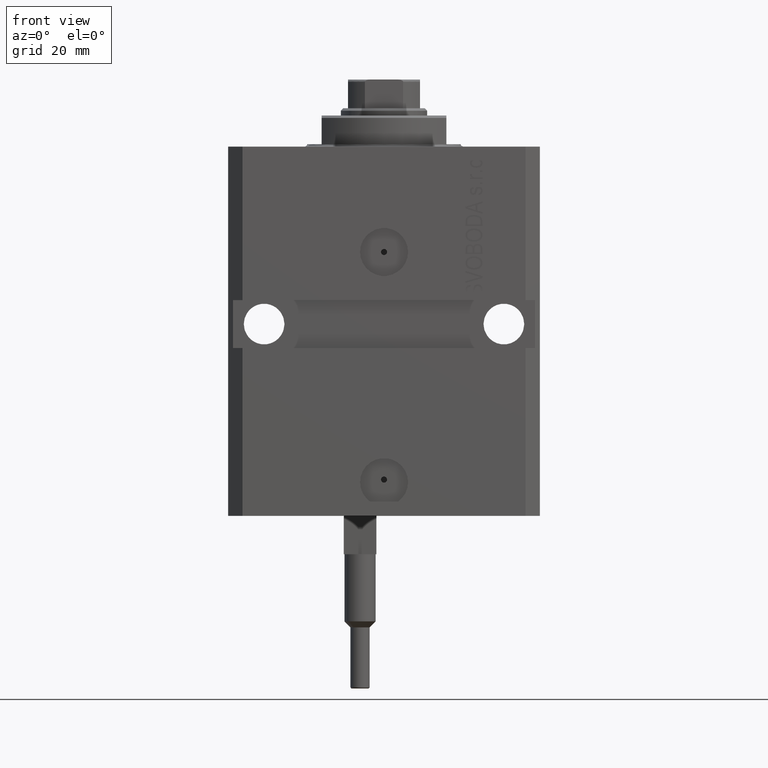
[diagram: clean part render]
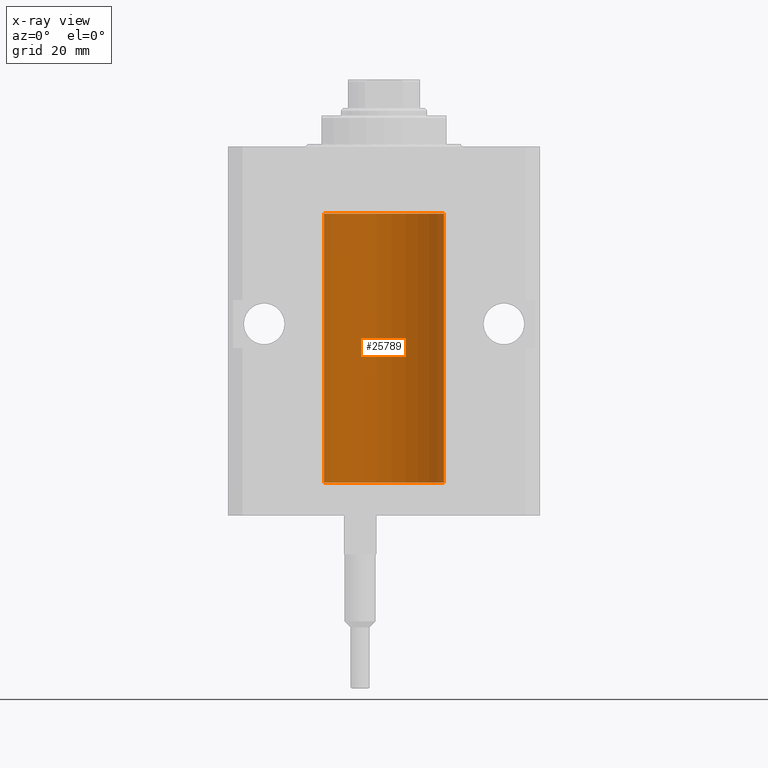
[diagram: x-ray — body ghosted, one internal face saturated and labeled with its STEP entity id]
A machine part, front view, then the same camera in x-ray: the body is ghosted and one INTERNAL B-rep face — a face not visible from any outside direction — is saturated and labeled: STEP entity #25789.
In plain terms, the highlighted cylindrical surface (partial cylindrical patch) has radius 12.5 mm, axis along (0, 0, 1).
Its self-contained STEP definition (entity closure, byte-faithful):
#194 = ORIENTED_EDGE ( 'NONE', *, *, #30402, .T. ) ;
#2446 = VERTEX_POINT ( 'NONE', #31337 ) ;
#3288 = CARTESIAN_POINT ( 'NONE',  ( -12.50000000000000000, -1.053276923642966949E-14, -64.37500000000000000 ) ) ;
#3767 = CARTESIAN_POINT ( 'NONE',  ( -12.49011732893843885, 0.5003763274120245352, -65.38348111289289477 ) ) ;
#4583 = CARTESIAN_POINT ( 'NONE',  ( -12.50000000000000000, -2.089494013101375120E-17, -21.37499999999999645 ) ) ;
#4644 = CARTESIAN_POINT ( 'NONE',  ( -12.48436813453758454, 0.6249418250771192618, -21.83668996798922635 ) ) ;
#6892 = VERTEX_POINT ( 'NONE', #38713 ) ;
#7084 = DIRECTION ( 'NONE',  ( 0.000000000000000000, 0.000000000000000000, 1.000000000000000000 ) ) ;
#7404 = CARTESIAN_POINT ( 'NONE',  ( -12.49915784441386890, 0.1636601911727943726, -64.39126818989430490 ) ) ;
#7504 = ORIENTED_EDGE ( 'NONE', *, *, #30743, .T. ) ;
#8134 = CARTESIAN_POINT ( 'NONE',  ( 12.50000000000000000, 0.000000000000000000, -70.09999999999999432 ) ) ;
#8277 = CARTESIAN_POINT ( 'NONE',  ( -12.49625855304193678, 0.3150454781038042329, -21.45402800297484802 ) ) ;
#8519 = CARTESIAN_POINT ( 'NONE',  ( -12.49915784441386890, 0.1636601911727947889, -21.39126818989430490 ) ) ;
#8897 = ORIENTED_EDGE ( 'NONE', *, *, #34902, .T. ) ;
#9186 = CARTESIAN_POINT ( 'NONE',  ( 12.50000000000000000, 0.000000000000000000, -13.99999999999999822 ) ) ;
#9513 = VERTEX_POINT ( 'NONE', #38198 ) ;
#10558 = ORIENTED_EDGE ( 'NONE', *, *, #46093, .F. ) ;
#11419 = CARTESIAN_POINT ( 'NONE',  ( -12.50000000000000000, 0.08260426088729219685, -21.37500000000000000 ) ) ;
#12033 = EDGE_CURVE ( 'NONE', #24742, #39116, #12627, .T. ) ;
#12080 = CYLINDRICAL_SURFACE ( 'NONE', #29189, 12.50000000000000000 ) ;
#12627 = LINE ( 'NONE', #45840, #18391 ) ;
#12740 = DIRECTION ( 'NONE',  ( -0.000000000000000000, -0.000000000000000000, 1.000000000000000000 ) ) ;
#13015 = ORIENTED_EDGE ( 'NONE', *, *, #29585, .T. ) ;
#13082 = VERTEX_POINT ( 'NONE', #4583 ) ;
#13911 = ORIENTED_EDGE ( 'NONE', *, *, #45574, .F. ) ;
#14837 = CARTESIAN_POINT ( 'NONE',  ( 0.000000000000000000, 0.000000000000000000, -70.09999999999999432 ) ) ;
#15159 = CARTESIAN_POINT ( 'NONE',  ( -12.48436813453758809, 0.6249418250771181516, -64.83668996798922990 ) ) ;
#16651 = CARTESIAN_POINT ( 'NONE',  ( -12.50000000000000000, -1.053276923642966949E-14, -64.37500000000000000 ) ) ;
#17117 = DIRECTION ( 'NONE',  ( 0.000000000000000000, 0.000000000000000000, 1.000000000000000000 ) ) ;
#17997 = DIRECTION ( 'NONE',  ( 1.000000000000000000, 0.000000000000000000, 0.000000000000000000 ) ) ;
#18181 = VERTEX_POINT ( 'NONE', #9186 ) ;
#18391 = VECTOR ( 'NONE', #20373, 1000.000000000000000 ) ;
#18559 = CARTESIAN_POINT ( 'NONE',  ( -12.49999999999999822, 0.1631761135151225950, -65.62499999999985789 ) ) ;
#19379 = LINE ( 'NONE', #44580, #30502 ) ;
#19424 = CARTESIAN_POINT ( 'NONE',  ( -12.48436376893640443, 0.6250290278979917513, -22.08132082824473486 ) ) ;
#20284 = ORIENTED_EDGE ( 'NONE', *, *, #12033, .F. ) ;
#20373 = DIRECTION ( 'NONE',  ( -0.000000000000000000, -0.000000000000000000, 1.000000000000000000 ) ) ;
#20952 = CIRCLE ( 'NONE', #28705, 12.50000000000000000 ) ;
#21114 = EDGE_LOOP ( 'NONE', ( #10558, #31869, #194, #8897, #13911, #7504, #20284, #13015 ) ) ;
#21710 = CARTESIAN_POINT ( 'NONE',  ( -12.49999999999999645, 0.08260426088728485550, -64.37499999999998579 ) ) ;
#21742 = CIRCLE ( 'NONE', #46547, 12.50000000000000000 ) ;
#22180 = CARTESIAN_POINT ( 'NONE',  ( -12.48436376893640265, 0.6250290278979918623, -65.08132082824472775 ) ) ;
#23534 = CARTESIAN_POINT ( 'NONE',  ( -12.49999999999999289, 0.1631761135151241215, -22.62499999999984013 ) ) ;
#24365 = DIRECTION ( 'NONE',  ( 1.000000000000000000, 0.000000000000000000, 0.000000000000000000 ) ) ;
#24742 = VERTEX_POINT ( 'NONE', #16651 ) ;
#25103 = CARTESIAN_POINT ( 'NONE',  ( -12.48810268015257741, 0.5573155909661293705, -64.67347410093867666 ) ) ;
#25581 = CARTESIAN_POINT ( 'NONE',  ( -12.49422197749724361, 0.3843754434364307082, -64.50047099568097053 ) ) ;
#25789 = ADVANCED_FACE ( 'NONE', ( #36807 ), #12080, .F. ) ;
#26206 = CARTESIAN_POINT ( 'NONE',  ( -12.49422197749724006, 0.3843754434364375916, -21.50047099568095277 ) ) ;
#28705 = AXIS2_PLACEMENT_3D ( 'NONE', #14837, #7084, #17997 ) ;
#29102 = CARTESIAN_POINT ( 'NONE',  ( -12.50000000000017941, 3.883381646606358354E-13, -22.62500000000358824 ) ) ;
#29189 = AXIS2_PLACEMENT_3D ( 'NONE', #40444, #47983, #29549 ) ;
#29549 = DIRECTION ( 'NONE',  ( 1.000000000000000000, 0.000000000000000000, 0.000000000000000000 ) ) ;
#29585 = EDGE_CURVE ( 'NONE', #24742, #6892, #44669, .T. ) ;
#29944 = CARTESIAN_POINT ( 'NONE',  ( -12.49631005746706514, 0.3253680783018499389, -65.55856740465391397 ) ) ;
#30092 = CARTESIAN_POINT ( 'NONE',  ( -12.49011732893843529, 0.5003763274120274218, -22.38348111289287701 ) ) ;
#30402 = EDGE_CURVE ( 'NONE', #47539, #18181, #44975, .T. ) ;
#30502 = VECTOR ( 'NONE', #48002, 1000.000000000000000 ) ;
#30743 = EDGE_CURVE ( 'NONE', #13082, #39116, #46929, .T. ) ;
#30822 = CARTESIAN_POINT ( 'NONE',  ( -12.50000000000000000, -2.089494013101375120E-17, -21.37499999999999645 ) ) ;
#30912 = VECTOR ( 'NONE', #12740, 1000.000000000000000 ) ;
#31337 = CARTESIAN_POINT ( 'NONE',  ( -12.50000000000000000, 1.530808498934191521E-15, -13.99999999999999822 ) ) ;
#31869 = ORIENTED_EDGE ( 'NONE', *, *, #37630, .F. ) ;
#32036 = CARTESIAN_POINT ( 'NONE',  ( -12.50000000000000000, 1.530808498934191521E-15, -70.09999999999999432 ) ) ;
#34211 = CARTESIAN_POINT ( 'NONE',  ( -12.48520330846397819, 0.6088355886774127201, -22.16325431852561323 ) ) ;
#34452 = CARTESIAN_POINT ( 'NONE',  ( -12.48809959379011403, 0.5462151254764975317, -22.31461370481611795 ) ) ;
#34902 = EDGE_CURVE ( 'NONE', #18181, #2446, #21742, .T. ) ;
#35289 = CARTESIAN_POINT ( 'NONE',  ( 0.000000000000000000, 0.000000000000000000, -13.99999999999999822 ) ) ;
#35426 = DIRECTION ( 'NONE',  ( -0.000000000000000000, -0.000000000000000000, 1.000000000000000000 ) ) ;
#36494 = CARTESIAN_POINT ( 'NONE',  ( -12.49625855304193500, 0.3150454781038046770, -64.45402800297485157 ) ) ;
#36807 = FACE_OUTER_BOUND ( 'NONE', #21114, .T. ) ;
#36968 = CARTESIAN_POINT ( 'NONE',  ( -12.48809959379011580, 0.5462151254764966435, -65.31461370481613926 ) ) ;
#37630 = EDGE_CURVE ( 'NONE', #47539, #9513, #20952, .T. ) ;
#37832 = CARTESIAN_POINT ( 'NONE',  ( -12.48810268015257563, 0.5573155909661349217, -21.67347410093867666 ) ) ;
#38074 = CARTESIAN_POINT ( 'NONE',  ( -12.50000000000017941, 3.883381646606358354E-13, -22.62500000000358824 ) ) ;
#38198 = CARTESIAN_POINT ( 'NONE',  ( -12.50000000000000000, 1.530808498934191521E-15, -70.09999999999999432 ) ) ;
#38713 = CARTESIAN_POINT ( 'NONE',  ( -12.50000000000017941, 3.883381774819353300E-13, -65.62500000000359535 ) ) ;
#39116 = VERTEX_POINT ( 'NONE', #29102 ) ;
#39797 = VECTOR ( 'NONE', #35426, 1000.000000000000000 ) ;
#39898 = CARTESIAN_POINT ( 'NONE',  ( -12.50000000000017941, 3.883381774819353300E-13, -65.62500000000359535 ) ) ;
#40369 = CARTESIAN_POINT ( 'NONE',  ( -12.48520330846398174, 0.6088355886774118320, -65.16325431852561678 ) ) ;
#40444 = CARTESIAN_POINT ( 'NONE',  ( 0.000000000000000000, 0.000000000000000000, -70.09999999999999432 ) ) ;
#40997 = CARTESIAN_POINT ( 'NONE',  ( -12.49631005746706336, 0.3253680783018528255, -22.55856740465392463 ) ) ;
#43126 = CARTESIAN_POINT ( 'NONE',  ( 12.50000000000000000, 0.000000000000000000, -70.09999999999999432 ) ) ;
#44580 = CARTESIAN_POINT ( 'NONE',  ( -12.50000000000000000, 1.530808498934191521E-15, -70.09999999999999432 ) ) ;
#44669 = B_SPLINE_CURVE_WITH_KNOTS ( 'NONE', 3,
 ( #3288, #21710, #7404, #36494, #25581, #25103, #15159, #22180, #40369, #36968, #3767, #29944, #18559, #39898 ),
 .UNSPECIFIED., .F., .F.,
 ( 4, 2, 2, 2, 2, 2, 4 ),
 ( 3.492495172846855184E-18, 0.0002442924852390798859, 0.0004885849704781563023, 0.0009771699409563386254, 0.001221462426195450658, 0.001465754911434562473, 0.001954339881912786538 ),
 .UNSPECIFIED. ) ;
#44975 = LINE ( 'NONE', #8134, #30912 ) ;
#45574 = EDGE_CURVE ( 'NONE', #13082, #2446, #19379, .T. ) ;
#45840 = CARTESIAN_POINT ( 'NONE',  ( -12.50000000000000000, 1.530808498934191521E-15, -70.09999999999999432 ) ) ;
#45868 = LINE ( 'NONE', #32036, #39797 ) ;
#46093 = EDGE_CURVE ( 'NONE', #9513, #6892, #45868, .T. ) ;
#46547 = AXIS2_PLACEMENT_3D ( 'NONE', #35289, #17117, #24365 ) ;
#46929 = B_SPLINE_CURVE_WITH_KNOTS ( 'NONE', 3,
 ( #30822, #11419, #8519, #8277, #26206, #37832, #4644, #19424, #34211, #34452, #30092, #40997, #23534, #38074 ),
 .UNSPECIFIED., .F., .F.,
 ( 4, 2, 2, 2, 2, 2, 4 ),
 ( 2.030551168097110502E-20, 0.0002442924852390969078, 0.0004885849704781938157, 0.0009771699409563880650, 0.001221462426195485135, 0.001465754911434582423, 0.001954339881912776130 ),
 .UNSPECIFIED. ) ;
#47539 = VERTEX_POINT ( 'NONE', #43126 ) ;
#47983 = DIRECTION ( 'NONE',  ( -0.000000000000000000, -0.000000000000000000, 1.000000000000000000 ) ) ;
#48002 = DIRECTION ( 'NONE',  ( -0.000000000000000000, -0.000000000000000000, 1.000000000000000000 ) ) ;